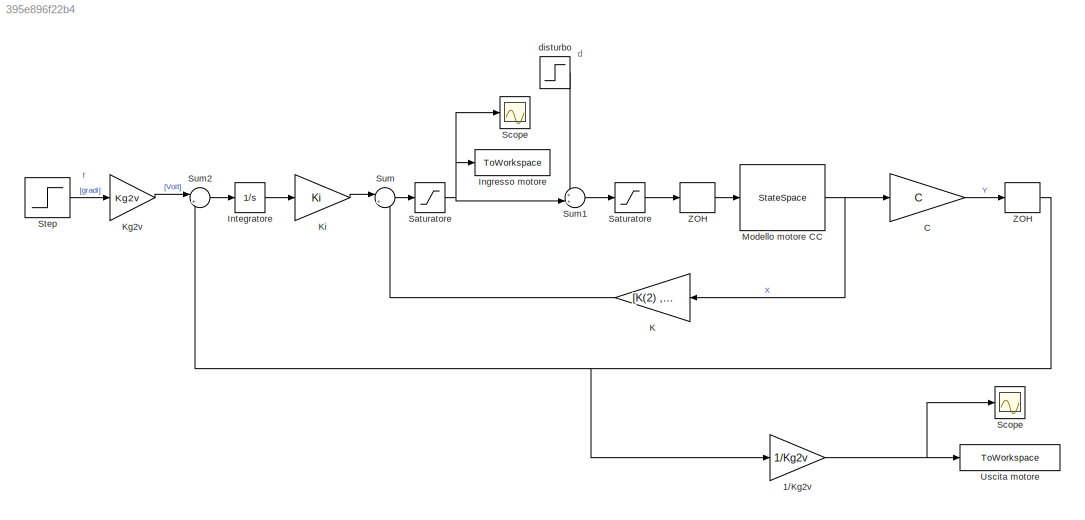
MODEL slx_395e896f22b4
KIND model
BLOCK [Gain] 1//Kg2v 
  Gain = 1/Kg2v
  OutDataTypeStr = Inherit: Inherit via internal rule
  ParamDataTypeStr = Inherit: Inherit via internal rule
  SaturateOnIntegerOverflow = off
BLOCK [Gain] C
  Gain = C
  Multiplication = Matrix(K*u) (u vector)
  OutDataTypeStr = Inherit: Inherit via internal rule
  ParamDataTypeStr = Inherit: Inherit via internal rule
  SaturateOnIntegerOverflow = off
BLOCK [ToWorkspace] Ingresso motore
  FixptAsFi = on
  MaxDataPoints = inf
  Ports = [1]
  SampleTime = -1
  VariableName = ingresso_motore
BLOCK [Integrator] Integratore
  Ports = [1, 1]
BLOCK [Gain] K
  Gain = [K(2) , K(3)]
  Multiplication = Matrix(K*u) (u vector)
  OutDataTypeStr = Inherit: Inherit via internal rule
  ParamDataTypeStr = Inherit: Inherit via internal rule
  SaturateOnIntegerOverflow = off
BLOCK [Gain] Kg2v
  Gain = Kg2v
  OutDataTypeStr = Inherit: Inherit via internal rule
  ParamDataTypeStr = Inherit: Inherit via internal rule
  SaturateOnIntegerOverflow = off
BLOCK [Gain] Ki
  Gain = Ki
  OutDataTypeStr = Inherit: Inherit via internal rule
  ParamDataTypeStr = Inherit: Inherit via internal rule
  SaturateOnIntegerOverflow = off
BLOCK [StateSpace] Modello motore CC
  A = A
  B = B
  C = [1 , 0 ; 0 , 1]
  D = [0 ; 0]
  Ports = [1, 1]
  X0 = 0
BLOCK [Saturate] Saturatore
  InputPortMap = u0
  LowerLimit = -5
  Ports = [1, 1]
  UpperLimit = 5
BLOCK [Saturate] Saturatore 
  InputPortMap = u0
  LowerLimit = -5
  Ports = [1, 1]
  UpperLimit = 5
BLOCK [Scope] Scope
  DataFormat = StructureWithTime
  Floating = off
  LimitDataPoints = off
  NumInputPorts = 1
  Ports = [1]
  SampleTime = 0
  SaveName = ScopeData1
  ShowLegends = off
BLOCK [Scope] Scope 
  DataFormat = StructureWithTime
  Floating = off
  LimitDataPoints = off
  NumInputPorts = 1
  Ports = [1]
  SampleTime = 0
  ShowLegends = off
BLOCK [Step] Step
  After = r
  SampleTime = 0
  Time = step_time_input
BLOCK [Sum] Sum
  IconShape = round
  InputSameDT = off
  Inputs = |+-
  OutDataTypeStr = Inherit: Inherit via internal rule
  Ports = [2, 1]
  SaturateOnIntegerOverflow = off
BLOCK [Sum] Sum1
  IconShape = round
  InputSameDT = off
  Inputs = ++|
  OutDataTypeStr = Inherit: Inherit via internal rule
  Ports = [2, 1]
  SaturateOnIntegerOverflow = off
BLOCK [Sum] Sum2
  IconShape = round
  InputSameDT = off
  Inputs = |+-
  OutDataTypeStr = Inherit: Inherit via internal rule
  Ports = [2, 1]
  SaturateOnIntegerOverflow = off
BLOCK [ToWorkspace] Uscita motore
  FixptAsFi = on
  MaxDataPoints = inf
  Ports = [1]
  SampleTime = -1
  VariableName = angolo_motore
BLOCK [ZeroOrderHold] ZOH
  SampleTime = 0.001
BLOCK [ZeroOrderHold] ZOH 
  SampleTime = 0.001
BLOCK [Step] disturbo
  After = d
  SampleTime = 0
  Time = step_time_input
ANNOTATION (root): d
ANNOTATION (root): r
NET 1//Kg2v :1 -> Scope:1, Uscita motore:1
LINE C:1 -> ZOH :1
LINE Integratore:1 -> Ki:1
LINE K:1 -> Sum:2
LINE Kg2v:1 -> Sum2:1
LINE Ki:1 -> Sum:1
NET Modello motore CC:1 -> C:1, K:1
NET Saturatore :1 -> Ingresso motore:1, Scope :1, Sum1:2
LINE Saturatore:1 -> ZOH:1
LINE Step:1 -> Kg2v:1
LINE Sum1:1 -> Saturatore:1
LINE Sum2:1 -> Integratore:1
LINE Sum:1 -> Saturatore :1
NET ZOH :1 -> 1//Kg2v :1, Sum2:2
LINE ZOH:1 -> Modello motore CC:1
LINE disturbo:1 -> Sum1:1
note: NET lines group one-source signal fan-out (src -> all destinations, sorted); 1:1 wires keep LINE
